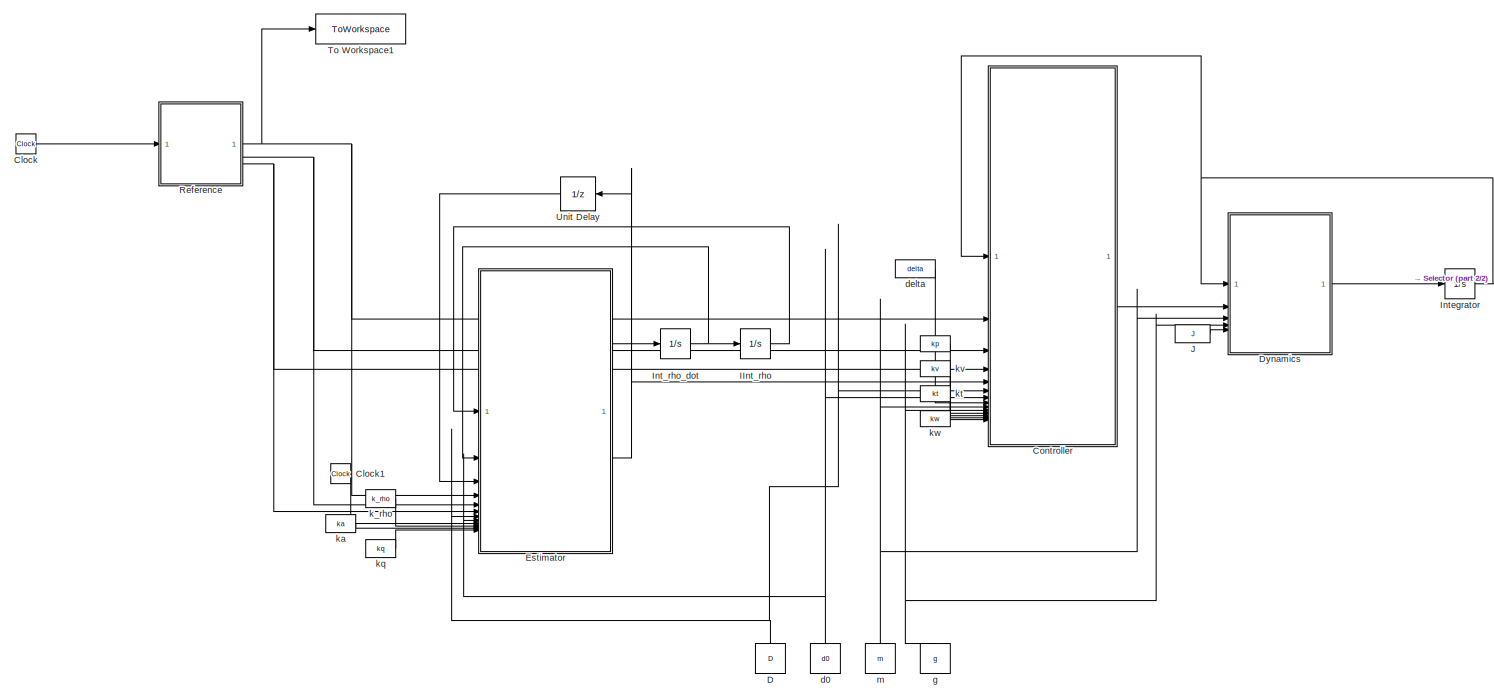
[diagram: root canvas - part 1/2, most of the canvas]
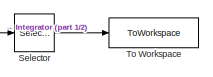
[diagram: root canvas - part 2/2, middle right region]
MODEL slx_54d689435c61
KIND model
CONFIG AbsTol = auto
CONFIG EnableMultiTasking = off
CONFIG FixedStep = 0.001
CONFIG MaxStep = auto
CONFIG MinStep = auto
CONFIG RelTol = 1e-3
CONFIG SampleTimeConstraint = Unconstrained
CONFIG SolverName = ode4
CONFIG StartTime = 0.0
CONFIG StopTime = 80.0
BLOCK [Constant]  
  Value = kp
BLOCK [Clock] Clock
BLOCK [Clock] Clock1
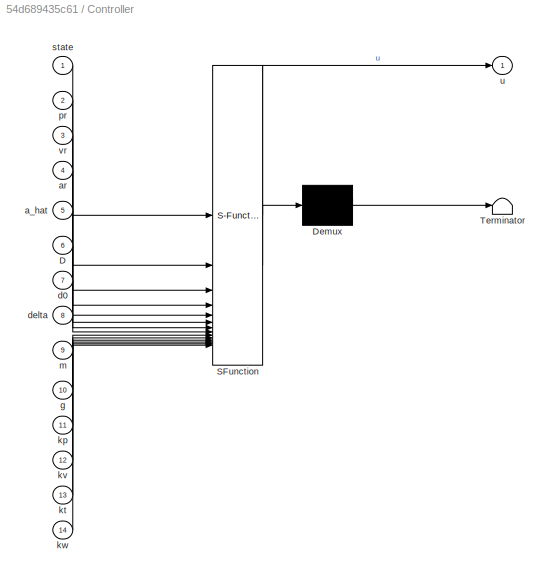
BLOCK [SubSystem] Controller
  ErrorFcn = Stateflow.Translate.translate
  PermitHierarchicalResolution = ExplicitOnly
  SFBlockType = MATLAB Function
  TreatAsAtomicUnit = on
BLOCK [Demux] Controller/ Demux 
  Outputs = 1
BLOCK [S-Function] Controller/ SFunction 
  EnableBusSupport = off
  FunctionName = sf_sfun
  PortCounts = [14 2]
  SFcnIsStateOwnerBlock = off
  SFunctionDeploymentMode = off
  Tag = Stateflow S-Function 1
BLOCK [Terminator] Controller/ Terminator 
BLOCK [Inport] Controller/D
  Port = 6
BLOCK [Inport] Controller/a_hat
  Port = 5
BLOCK [Inport] Controller/ar
  Port = 4
BLOCK [Inport] Controller/d0
  Port = 7
BLOCK [Inport] Controller/delta
  Port = 8
BLOCK [Inport] Controller/g
  Port = 10
BLOCK [Inport] Controller/kp
  Port = 11
BLOCK [Inport] Controller/kt
  Port = 13
BLOCK [Inport] Controller/kv
  Port = 12
BLOCK [Inport] Controller/kw
  Port = 14
BLOCK [Inport] Controller/m
  Port = 9
BLOCK [Inport] Controller/pr
  Port = 2
BLOCK [Inport] Controller/state
BLOCK [Outport] Controller/u
BLOCK [Inport] Controller/vr
  Port = 3
BLOCK [Constant] D
  NameLocation = right
  Value = D
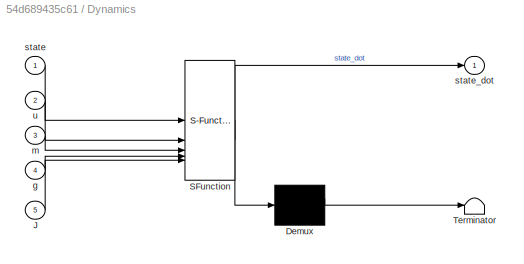
BLOCK [SubSystem] Dynamics
  ErrorFcn = Stateflow.Translate.translate
  PermitHierarchicalResolution = ExplicitOnly
  SFBlockType = MATLAB Function
  TreatAsAtomicUnit = on
BLOCK [Demux] Dynamics/ Demux 
  Outputs = 1
BLOCK [S-Function] Dynamics/ SFunction 
  EnableBusSupport = off
  FunctionName = sf_sfun
  PortCounts = [5 2]
  SFcnIsStateOwnerBlock = off
  SFunctionDeploymentMode = off
  Tag = Stateflow S-Function 3
BLOCK [Terminator] Dynamics/ Terminator 
BLOCK [Inport] Dynamics/J
  Port = 5
BLOCK [Inport] Dynamics/g
  Port = 4
BLOCK [Inport] Dynamics/m
  Port = 3
BLOCK [Inport] Dynamics/state
BLOCK [Outport] Dynamics/state_dot
BLOCK [Inport] Dynamics/u
  Port = 2
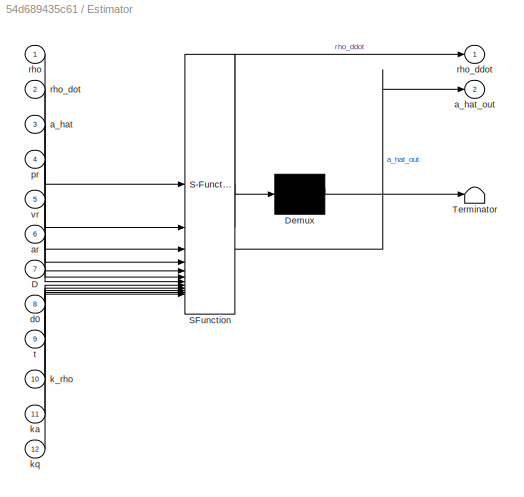
BLOCK [SubSystem] Estimator
  ErrorFcn = Stateflow.Translate.translate
  PermitHierarchicalResolution = ExplicitOnly
  SFBlockType = MATLAB Function
  TreatAsAtomicUnit = on
BLOCK [Demux] Estimator/ Demux 
  Outputs = 1
BLOCK [S-Function] Estimator/ SFunction 
  EnableBusSupport = off
  FunctionName = sf_sfun
  PortCounts = [12 3]
  SFcnIsStateOwnerBlock = off
  SFunctionDeploymentMode = off
  Tag = Stateflow S-Function 4
BLOCK [Terminator] Estimator/ Terminator 
BLOCK [Inport] Estimator/D
  Port = 7
BLOCK [Inport] Estimator/a_hat
  Port = 3
BLOCK [Outport] Estimator/a_hat_out
  Port = 2
BLOCK [Inport] Estimator/ar
  Port = 6
BLOCK [Inport] Estimator/d0
  Port = 8
BLOCK [Inport] Estimator/k_rho
  Port = 10
BLOCK [Inport] Estimator/ka
  Port = 11
BLOCK [Inport] Estimator/kq
  Port = 12
BLOCK [Inport] Estimator/pr
  Port = 4
BLOCK [Inport] Estimator/rho
BLOCK [Outport] Estimator/rho_ddot
BLOCK [Inport] Estimator/rho_dot
  Port = 2
BLOCK [Inport] Estimator/t
  Port = 9
BLOCK [Inport] Estimator/vr
  Port = 5
BLOCK [Integrator] IInt_rho
BLOCK [Integrator] Int_rho_dot
BLOCK [Integrator] Integrator
  InitialCondition = xInitial
BLOCK [Constant] J
  Value = J
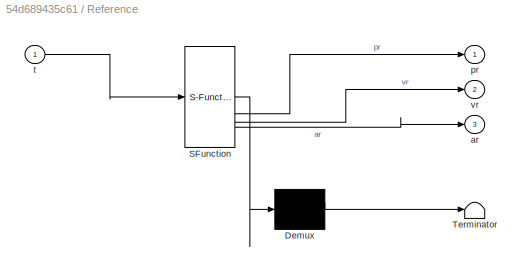
BLOCK [SubSystem] Reference
  ErrorFcn = Stateflow.Translate.translate
  PermitHierarchicalResolution = ExplicitOnly
  SFBlockType = MATLAB Function
  TreatAsAtomicUnit = on
BLOCK [Demux] Reference/ Demux 
  Outputs = 1
BLOCK [S-Function] Reference/ SFunction 
  EnableBusSupport = off
  FunctionName = sf_sfun
  PortCounts = [1 4]
  SFcnIsStateOwnerBlock = off
  SFunctionDeploymentMode = off
  Tag = Stateflow S-Function 2
BLOCK [Terminator] Reference/ Terminator 
BLOCK [Outport] Reference/ar
  Port = 3
BLOCK [Outport] Reference/pr
BLOCK [Inport] Reference/t
BLOCK [Outport] Reference/vr
  Port = 2
BLOCK [Selector] Selector
  IndexOptions = Index vector (dialog),Select all
  Indices = [1 2 3],1
  InputPortWidth = 13
  NumberOfDimensions = 2
  OutputSizes = 1,1
BLOCK [ToWorkspace] To Workspace
  FixptAsFi = on
  MaxDataPoints = inf
  SampleTime = -1
  SaveFormat = Timeseries
  VariableName = out_p
BLOCK [ToWorkspace] To Workspace1
  FixptAsFi = on
  MaxDataPoints = inf
  SampleTime = -1
  SaveFormat = Timeseries
  VariableName = out_pr
BLOCK [UnitDelay] Unit Delay
  HasFrameUpgradeWarning = on
  InitialCondition = zeros(3,4)
  NameLocation = top
  SampleTime = -1
BLOCK [Constant] d0
  NameLocation = right
  Value = d0
BLOCK [Constant] delta
  Value = delta
BLOCK [Constant] g
  NameLocation = right
  Value = g
BLOCK [Constant] k_rho
  Value = k_rho
BLOCK [Constant] ka
  Value = ka
  VectorParams1D = off
BLOCK [Constant] kq
  Value = kq
BLOCK [Constant] kt
  Value = kt
BLOCK [Constant] kv
  Value = kv
BLOCK [Constant] kw
  Value = kw
BLOCK [Constant] m
  NameLocation = right
  Value = m
LINE  :1 -> Controller:11
LINE Clock1:1 -> Estimator:9
LINE Clock:1 -> Reference:1
LINE Controller:1 -> Dynamics:2
NET D:1 -> Controller:6, Estimator:7
LINE Dynamics:1 -> Integrator:1
LINE Estimator:1 -> Int_rho_dot:1
NET Estimator:2 -> Controller:5, Unit Delay:1
LINE IInt_rho:1 -> Estimator:1
NET Int_rho_dot:1 -> Estimator:2, IInt_rho:1
NET Integrator:1 -> Controller:1, Dynamics:1, Selector:1
LINE J:1 -> Dynamics:5
NET Reference:1 -> Controller:2, Estimator:4, To Workspace1:1
NET Reference:2 -> Controller:3, Estimator:5
NET Reference:3 -> Controller:4, Estimator:6
LINE Selector:1 -> To Workspace:1
LINE Unit Delay:1 -> Estimator:3
NET d0:1 -> Controller:7, Estimator:8
LINE delta:1 -> Controller:8
NET g:1 -> Controller:10, Dynamics:4
LINE k_rho:1 -> Estimator:10
LINE ka:1 -> Estimator:11
LINE kq:1 -> Estimator:12
LINE kt:1 -> Controller:13
LINE kv:1 -> Controller:12
LINE kw:1 -> Controller:14
NET m:1 -> Controller:9, Dynamics:3
note: NET lines group one-source signal fan-out (src -> all destinations, sorted); 1:1 wires keep LINE
CHART Controller states=1 transitions=1
  STATE_LABEL 'eML_blk_kernel()'
  STATE_LABEL 'SCRIPT:\nfunction u = Multi_Controller(state, pr, vr, ar, a_hat, D, d0, delta, m, g, kp, kv, kt, kw)\n    % 解包状态 (注意现在是矩阵)\n    % p, v: 3x4\n    % Q: 4x4\n    % w: 3x4\n    p = state(1:3, :);\n    v = state(4:6, :);\n    Q = state(7:10, :);\n    w = state(11:13, :);\n    \n    num = 4;\n    u = zeros(4, num); % 输出 [T; tau_x; tau_y; tau_z] x 4\n    \n    % 循环处理每一架飞机 (这是最稳妥的写法)\n    for i = 1:num\n        % --- 1. ...<+2079ch>'
CHART Reference states=1 transitions=1
  STATE_LABEL 'eML_blk_kernel()'
  STATE_LABEL 'SCRIPT:\nfunction [pr, vr, ar] = Reference(t)\n    % 论文 Section IV 的 8 字形螺旋轨迹\n    % pr: 位置, vr: 速度, ar: 加速度\n    \n    % 位置 pr = [3cos(0.2t), 2sin(0.2t), t]\n    pr = [3*cos(0.2*t); 2*sin(0.2*t); t];\n    \n    % 速度 (对时间求导)\n    vr = [-0.6*sin(0.2*t); 0.4*cos(0.2*t); 1];\n    \n    % 加速度 (再求导)\n    ar = [-0.12*cos(0.2*t); -0.08*sin(0.2*t); 0];\nend'
CHART Dynamics states=1 transitions=1
  STATE_LABEL 'eML_blk_kernel()'
  STATE_LABEL 'SCRIPT:\nfunction state_dot = Multi_Dynamics(state, u, m, g, J)\n    % state: 13x4\n    % u: 4x4\n    \n    num = 4;\n    state_dot = zeros(13, num);\n    e3 = [0;0;1];\n    \n    for i = 1:num\n        % 提取单机状态\n        p = state(1:3, i);\n        v = state(4:6, i);\n        Q = state(7:10, i);\n        w = state(11:13, i);\n        \n        T = u(1, i);\n        tau = u(2:4, i);\n        \n        % 1. 位置导数\n     ...<+650ch>'
CHART Estimator states=1 transitions=1
  STATE_LABEL 'eML_blk_kernel()'
  STATE_LABEL 'SCRIPT:\nfunction [rho_ddot, a_hat_out] = Estimator_Dynamics(rho, rho_dot, a_hat, pr, vr, ar, D, d0, t, k_rho, ka, kq)\n    % 论文 Eq. 11: 分布式有限时间估计器\n    % 处理 4 架无人机的矩阵运算\n    \n    num = 4;\n    rho_ddot = zeros(3, num);\n    a_hat_out = zeros(3, num); % 输出新的 a_hat 供控制器使用\n    \n    % 有限时间函数 epsilon(t) = exp(-0.5 * t)\n    % 为了防止分母为0，加一个极小值\n    eps_t = exp(-0.5 * t) + 1e-6; \n    \n    % 领航者的 jerk (p_r的三阶导)。\n...<+2231ch>'
CHART  states=0 transitions=0
CHART  states=0 transitions=0
CHART  states=0 transitions=0
CHART  states=0 transitions=0
